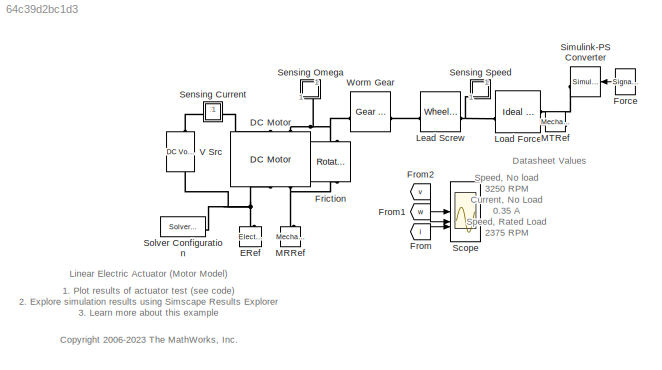
MODEL slx_64c39d2bc1d3
KIND model
CONFIG AbsTol = auto
CONFIG EnableMultiTasking = on
CONFIG FixedStep = auto
CONFIG MaxStep = 1e-2
CONFIG MinStep = auto
CONFIG RelTol = 1e-3
CONFIG SampleTimeConstraint = Unconstrained
CONFIG SolverName = VariableStepAuto
CONFIG StartTime = 0.0
CONFIG StopTime = 10
BLOCK [Reference] DC Motor  REF=ee_lib/Electromechanical/Brushed Motors/DC Motor
  NameLocation = left
  SourceBlock = ee_lib/Electromechanical/Brushed Motors/DC Motor
  SourceType = DC Motor
BLOCK [Reference] ERef  REF=fl_lib/Electrical/Electrical Elements/Electrical Reference
  NameLocation = left
  SourceBlock = fl_lib/Electrical/Electrical Elements/Electrical Reference
  SourceType = Electrical Reference
BLOCK [Reference] Force  REF=SignalEditorBlockLib/Signal Editor
  SourceBlock = SignalEditorBlockLib/Signal Editor
  SourceType = SignalEditor
  UserDataPersistent = on
BLOCK [Reference] Friction  REF=fl_lib/Mechanical/Rotational Elements/Rotational Friction
  AttributesFormatString = %<Col_trq> %<Col_trq_unit>
  NameLocation = right
  SourceBlock = fl_lib/Mechanical/Rotational Elements/Rotational Friction
  SourceType = Rotational Friction
BLOCK [From] From
  GotoTag = i
  TagVisibility = global
BLOCK [From] From1
  GotoTag = w
  TagVisibility = global
BLOCK [From] From2
  GotoTag = v
  TagVisibility = global
BLOCK [Reference] Lead Screw  REF=fl_lib/Mechanical/Mechanisms/Wheel and Axle
  NameLocation = top
  SourceBlock = fl_lib/Mechanical/Mechanisms/Wheel and Axle
  SourceType = Wheel and Axle
BLOCK [Reference] Load Force  REF=fl_lib/Mechanical/Mechanical Sources/Ideal Force Source
  SourceBlock = fl_lib/Mechanical/Mechanical Sources/Ideal Force Source
  SourceType = Ideal Force Source
BLOCK [Reference] MRRef  REF=fl_lib/Mechanical/Rotational Elements/Mechanical
Rotational Reference
  NameLocation = right
  SourceBlock = fl_lib/Mechanical/Rotational Elements/Mechanical\nRotational Reference
  SourceType = Mechanical\nRotational Reference
BLOCK [Reference] MTRef  REF=fl_lib/Mechanical/Translational
Elements/Mechanical
Translational
Reference
  SourceBlock = fl_lib/Mechanical/Translational\nElements/Mechanical\nTranslational\nReference
  SourceType = Mechanical\nTranslational\nReference
BLOCK [Scope] Scope
  Floating = off
  NumInputPorts = 3
  ScopeSpecificationString = Simulink.scopes.TimeScopeBlockCfg('CurrentConfiguration', extmgr.ConfigurationSet(extmgr.Configuration('Core','General UI',true),extmgr.Configuration('Core','Source UI',true),extmgr.Configuration('Sources','WiredSimulink',true,'DataLoggingVariableName','ScopeData3','DataLoggingSaveFormat','StructureWithTime','DataLoggingDecimation','1','DataLoggingDecimateData',true),extmgr.Configuration('Visuals'...<+3026ch>
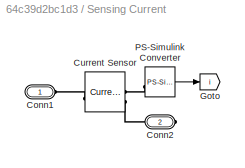
BLOCK [SubSystem] Sensing Current
BLOCK [PMIOPort] Sensing Current/Conn1
  Side = Left
BLOCK [PMIOPort] Sensing Current/Conn2
  Port = 2
  Side = Right
BLOCK [Reference] Sensing Current/Current Sensor  REF=fl_lib/Electrical/Electrical Sensors/Current Sensor
  SourceBlock = fl_lib/Electrical/Electrical Sensors/Current Sensor
  SourceType = Current Sensor
BLOCK [Goto] Sensing Current/Goto
  GotoTag = i
  TagVisibility = global
BLOCK [Reference] Sensing Current/PS-Simulink Converter  REF=nesl_utility/PS-Simulink
Converter
  SourceBlock = nesl_utility/PS-Simulink\nConverter
  SourceType = PS-Simulink\nConverter
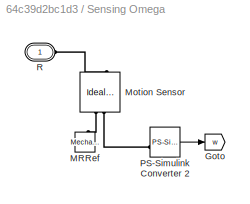
BLOCK [SubSystem] Sensing Omega
  NameLocation = left
BLOCK [Goto] Sensing Omega/Goto
  GotoTag = w
  TagVisibility = global
BLOCK [Reference] Sensing Omega/MRRef  REF=fl_lib/Mechanical/Rotational Elements/Mechanical
Rotational Reference
  NameLocation = left
  SourceBlock = fl_lib/Mechanical/Rotational Elements/Mechanical\nRotational Reference
  SourceType = Mechanical\nRotational Reference
BLOCK [Reference] Sensing Omega/Motion Sensor  REF=fl_lib/Mechanical/Mechanical Sensors/Ideal Rotational
Motion Sensor
  NameLocation = right
  SourceBlock = fl_lib/Mechanical/Mechanical Sensors/Ideal Rotational\nMotion Sensor
  SourceType = Ideal Rotational\nMotion Sensor
BLOCK [Reference] Sensing Omega/PS-Simulink Converter 2  REF=nesl_utility/PS-Simulink
Converter
  SourceBlock = nesl_utility/PS-Simulink\nConverter
  SourceType = PS-Simulink\nConverter
BLOCK [PMIOPort] Sensing Omega/R
  Side = Left
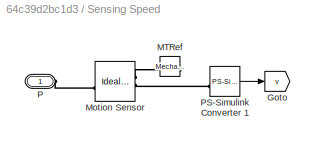
BLOCK [SubSystem] Sensing Speed
  NameLocation = right
BLOCK [Goto] Sensing Speed/Goto
  GotoTag = v
  TagVisibility = global
BLOCK [Reference] Sensing Speed/MTRef  REF=fl_lib/Mechanical/Translational
Elements/Mechanical
Translational
Reference
  NameLocation = top
  SourceBlock = fl_lib/Mechanical/Translational\nElements/Mechanical\nTranslational\nReference
  SourceType = Mechanical\nTranslational\nReference
BLOCK [Reference] Sensing Speed/Motion Sensor  REF=fl_lib/Mechanical/Mechanical Sensors/Ideal Translational
Motion Sensor
  SourceBlock = fl_lib/Mechanical/Mechanical Sensors/Ideal Translational\nMotion Sensor
  SourceType = Ideal Translational\nMotion Sensor
BLOCK [PMIOPort] Sensing Speed/P
  Side = Left
BLOCK [Reference] Sensing Speed/PS-Simulink Converter 1  REF=nesl_utility/PS-Simulink
Converter
  SourceBlock = nesl_utility/PS-Simulink\nConverter
  SourceType = PS-Simulink\nConverter
BLOCK [Reference] Simulink-PS Converter  REF=nesl_utility/Simulink-PS
Converter
  SourceBlock = nesl_utility/Simulink-PS\nConverter
  SourceType = Simulink-PS\nConverter
BLOCK [Reference] Solver Configuration  REF=nesl_utility/Solver
Configuration
  SourceBlock = nesl_utility/Solver\nConfiguration
  SourceType = Solver\nConfiguration
BLOCK [Reference] V Src  REF=fl_lib/Electrical/Electrical Sources/DC Voltage Source
  AttributesFormatString = %<v0> %<v0_unit>
  NameLocation = left
  SourceBlock = fl_lib/Electrical/Electrical Sources/DC Voltage Source
  SourceType = DC Voltage Source
BLOCK [Reference] Worm Gear  REF=fl_lib/Mechanical/Mechanisms/Gear Box
  AttributesFormatString = %<ratio>:1
  NameLocation = top
  SourceBlock = fl_lib/Mechanical/Mechanisms/Gear Box
  SourceType = Gear Box
ANNOTATION (root): 1. Plot results of actuator test ( see code ) 2. Explore simulation results using Simscape Results Explorer 3. Learn more about this example
ANNOTATION (root): Datasheet Values
ANNOTATION (root): Speed, No load 3250 RPM Current, No Load 0.35 A Speed, Rated Load 2375 RPM Rated Load 1000N Rated Voltage 24 V Max Static Force 4000N Max Current 5A Max Load 4000N
ANNOTATION (root): <copyright redacted>
ANNOTATION (root): Linear Electric Actuator (Motor Model)
LINE Force:1 -> Simulink-PS Converter:1
LINE From1:1 -> Scope:2
LINE From2:1 -> Scope:1
LINE From:1 -> Scope:3
LINE Sensing Current/PS-Simulink Converter:1 -> Sensing Current/Goto:1
LINE Sensing Omega/PS-Simulink Converter 2:1 -> Sensing Omega/Goto:1
LINE Sensing Speed/PS-Simulink Converter 1:1 -> Sensing Speed/Goto:1
PLINE DC Motor:LConn1 -- Sensing Current:RConn1
PNET net1: DC Motor:LConn2 -- Friction:LConn1 -- Sensing Omega:LConn1 -- Worm Gear:LConn1
PNET net2: DC Motor:RConn1 -- ERef:LConn1 -- Solver Configuration:RConn1 -- V Src:RConn1
PNET net3: DC Motor:RConn2 -- Friction:RConn1 -- MRRef:LConn1
PLINE Lead Screw:LConn1 -- Worm Gear:RConn1
PNET net4: Lead Screw:RConn1 -- Load Force:LConn1 -- Sensing Speed:LConn1
PLINE Load Force:RConn1 -- Simulink-PS Converter:RConn1
PLINE Load Force:RConn2 -- MTRef:LConn1
PLINE Sensing Current/Conn1:RConn1 -- Sensing Current/Current Sensor:LConn1
PLINE Sensing Current/Conn2:RConn1 -- Sensing Current/Current Sensor:RConn2
PLINE Sensing Current/Current Sensor:RConn1 -- Sensing Current/PS-Simulink Converter:LConn1
PLINE Sensing Current:LConn1 -- V Src:LConn1
PLINE Sensing Omega/MRRef:LConn1 -- Sensing Omega/Motion Sensor:RConn1
PLINE Sensing Omega/Motion Sensor:LConn1 -- Sensing Omega/R:RConn1
PLINE Sensing Omega/Motion Sensor:RConn2 -- Sensing Omega/PS-Simulink Converter 2:LConn1
PLINE Sensing Speed/MTRef:LConn1 -- Sensing Speed/Motion Sensor:RConn1
PLINE Sensing Speed/Motion Sensor:LConn1 -- Sensing Speed/P:RConn1
PLINE Sensing Speed/Motion Sensor:RConn2 -- Sensing Speed/PS-Simulink Converter 1:LConn1
note: PNET lines group multi-terminal physical nets as a canonical sorted terminal list (undirected conserving connections); 2-terminal nets keep the pairwise PLINE form
